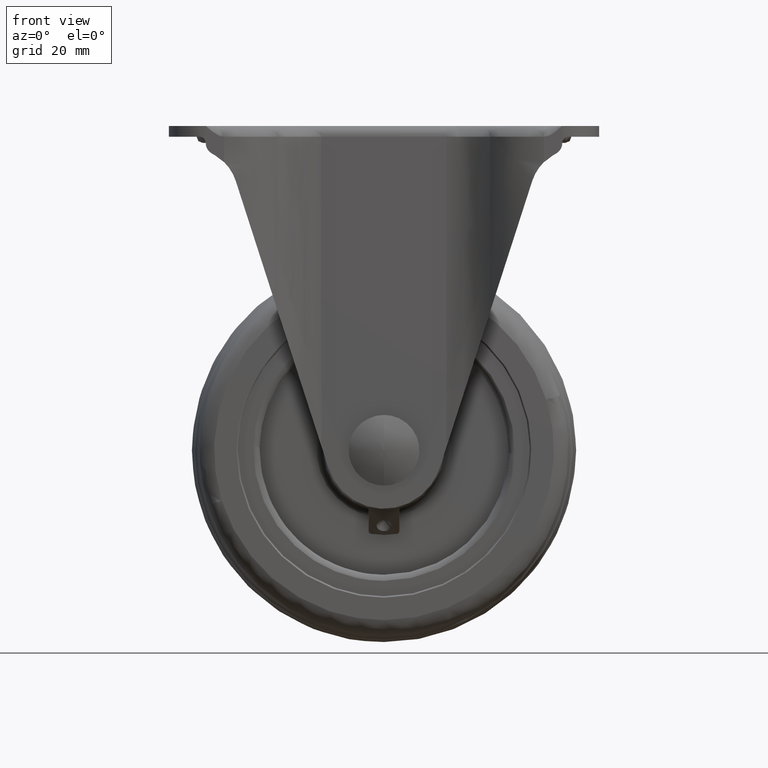
[diagram: clean part render]
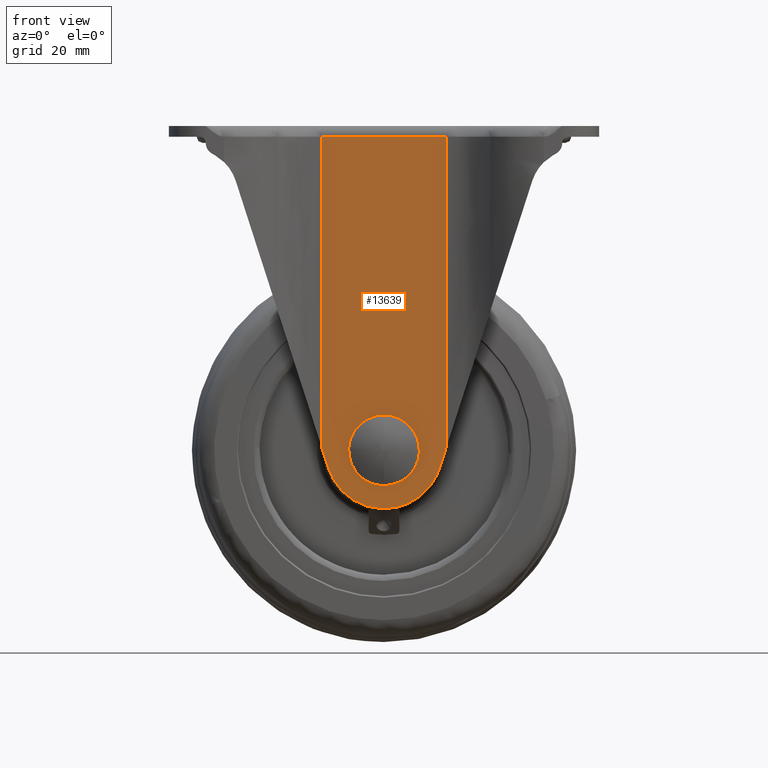
[diagram: same view with one face highlighted and labeled with its STEP entity id]
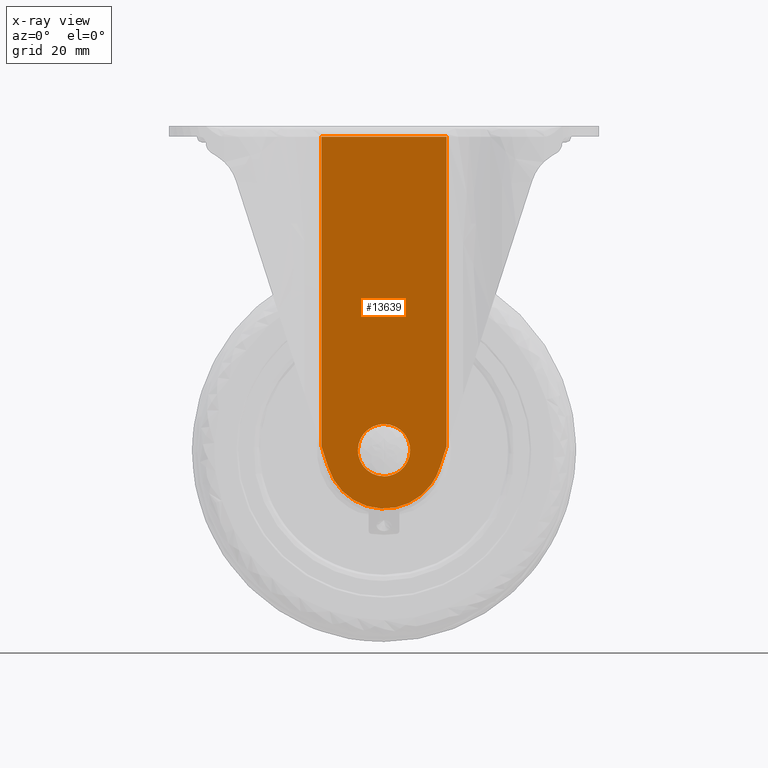
[diagram: x-ray of the same camera — body ghosted, the highlighted face saturated]
A machine part, front view. The second image highlights one B-rep face of the part: STEP entity #13639.
The next image is the same camera in x-ray: the body ghosted, the highlighted face saturated — about 0% of this face is hidden behind the body in this view.
In plain terms, the highlighted face is a freeform B-spline surface patch.
Its self-contained STEP definition (entity closure, byte-faithful):
#6710=CARTESIAN_POINT('',(0.074175491184803,-31.500000000000000,-8.499669346307332));
#6711=VERTEX_POINT('',#6710);
#6717=CARTESIAN_POINT('',(8.499993000000002,-31.500000000000000,0.0));
#6718=VERTEX_POINT('',#6717);
#6719=CARTESIAN_POINT('',(8.499993000000002,-31.500000000000000,0.0));
#6720=CARTESIAN_POINT('',(8.499993000000000,-31.500000000000004,-8.426138350349072));
#6721=CARTESIAN_POINT('',(0.074175491184802,-31.500000000000004,-8.499669346307334));
#6729=(BOUNDED_CURVE()B_SPLINE_CURVE(2,(#6719,#6720,#6721),.UNSPECIFIED.,.F.,.U.)B_SPLINE_CURVE_WITH_KNOTS((3,3),(0.500000000000000,0.748460105653939),.UNSPECIFIED.)CURVE()GEOMETRIC_REPRESENTATION_ITEM()RATIONAL_B_SPLINE_CURVE((1.0,0.708910879633149,0.996414028074777))REPRESENTATION_ITEM(''));
#6730=EDGE_CURVE('',#6718,#6711,#6729,.T.);
#6732=CARTESIAN_POINT('',(-0.074175491184803,-31.500000000000000,8.499669346307332));
#6733=VERTEX_POINT('',#6732);
#6734=CARTESIAN_POINT('',(-0.074175491184804,-31.499999999999993,8.499669346307334));
#6735=CARTESIAN_POINT('',(-0.037088451699710,-31.500000000000000,8.499993000000004));
#6736=CARTESIAN_POINT('',(0.0,-31.500000000000000,8.499993000000002));
#6737=CARTESIAN_POINT('',(8.499993000000002,-31.500000000000007,8.499993000000002));
#6738=CARTESIAN_POINT('',(8.499993000000002,-31.500000000000000,0.0));
#6746=(BOUNDED_CURVE()B_SPLINE_CURVE(2,(#6734,#6735,#6736,#6737,#6738),.UNSPECIFIED.,.F.,.U.)B_SPLINE_CURVE_WITH_KNOTS((3,2,3),(0.248460105653939,0.250000000000000,0.500000000000000),.UNSPECIFIED.)CURVE()GEOMETRIC_REPRESENTATION_ITEM()RATIONAL_B_SPLINE_CURVE((0.996414028074777,0.998195901553398,1.0,0.707106781186547,1.0))REPRESENTATION_ITEM(''));
#6747=EDGE_CURVE('',#6733,#6718,#6746,.T.);
#6823=CARTESIAN_POINT('',(-8.499993000000002,-31.500000000000000,0.0));
#6824=VERTEX_POINT('',#6823);
#6825=CARTESIAN_POINT('',(-8.499993000000002,-31.500000000000000,0.0));
#6826=CARTESIAN_POINT('',(-8.499993000000004,-31.500000000000004,8.426138350349071));
#6827=CARTESIAN_POINT('',(-0.074175491184804,-31.499999999999993,8.499669346307334));
#6835=(BOUNDED_CURVE()B_SPLINE_CURVE(2,(#6825,#6826,#6827),.UNSPECIFIED.,.F.,.U.)B_SPLINE_CURVE_WITH_KNOTS((3,3),(0.0,0.248460105653939),.UNSPECIFIED.)CURVE()GEOMETRIC_REPRESENTATION_ITEM()RATIONAL_B_SPLINE_CURVE((1.0,0.708910879633149,0.996414028074777))REPRESENTATION_ITEM(''));
#6836=EDGE_CURVE('',#6824,#6733,#6835,.T.);
#6838=CARTESIAN_POINT('',(0.074175491184802,-31.500000000000004,-8.499669346307334));
#6839=CARTESIAN_POINT('',(0.037088451699709,-31.500000000000000,-8.499993000000004));
#6840=CARTESIAN_POINT('',(0.0,-31.500000000000000,-8.499993000000002));
#6841=CARTESIAN_POINT('',(-8.499993000000002,-31.500000000000007,-8.499993000000002));
#6842=CARTESIAN_POINT('',(-8.499993000000002,-31.500000000000000,0.0));
#6850=(BOUNDED_CURVE()B_SPLINE_CURVE(2,(#6838,#6839,#6840,#6841,#6842),.UNSPECIFIED.,.F.,.U.)B_SPLINE_CURVE_WITH_KNOTS((3,2,3),(0.748460105653939,0.750000000000000,1.0),.UNSPECIFIED.)CURVE()GEOMETRIC_REPRESENTATION_ITEM()RATIONAL_B_SPLINE_CURVE((0.996414028074777,0.998195901553398,1.0,0.707106781186547,1.0))REPRESENTATION_ITEM(''));
#6851=EDGE_CURVE('',#6711,#6824,#6850,.T.);
#12146=CARTESIAN_POINT('',(-20.381176492475301,-31.500000000000000,102.0));
#12147=VERTEX_POINT('',#12146);
#12207=CARTESIAN_POINT('',(20.381172492475301,-31.500000000000000,102.0));
#12208=VERTEX_POINT('',#12207);
#12230=CARTESIAN_POINT('',(20.381172492475301,-31.500000000000000,102.0));
#12231=CARTESIAN_POINT('',(-20.381176492475301,-31.500000000000000,102.0));
#12232=QUASI_UNIFORM_CURVE('',1,(#12230,#12231),.UNSPECIFIED.,.F.,.U.);
#12233=EDGE_CURVE('',#12208,#12147,#12232,.T.);
#13138=CARTESIAN_POINT('',(-18.235149932094199,-31.500000000000000,-5.336600692767270));
#13139=VERTEX_POINT('',#13138);
#13140=CARTESIAN_POINT('',(18.235148162409399,-31.500000000000000,-5.336606739771750));
#13141=VERTEX_POINT('',#13140);
#13142=CARTESIAN_POINT('',(-18.235149932094199,-31.500000000000000,-5.336600692767270));
#13143=CARTESIAN_POINT('',(-17.967087515909270,-31.500000000000039,-6.252694110689194));
#13144=CARTESIAN_POINT('',(-17.225112594543749,-31.499999999999911,-8.223585253871157));
#13145=CARTESIAN_POINT('',(-15.749827790719801,-31.500000000000082,-10.765674029452400));
#13146=CARTESIAN_POINT('',(-13.941784169241370,-31.499999999999979,-12.994169864258041));
#13147=CARTESIAN_POINT('',(-11.987909808096729,-31.500000000000039,-14.827440552413821));
#13148=CARTESIAN_POINT('',(-9.264089500707369,-31.499999999999989,-16.722938043539319));
#13149=CARTESIAN_POINT('',(-5.808341457058003,-31.500000000000021,-18.253742704163511));
#13150=CARTESIAN_POINT('',(-2.167946989201751,-31.500000000000000,-18.975999867271799));
#13151=CARTESIAN_POINT('',(1.339950511867920,-31.499999999999989,-19.046508700421949));
#13152=CARTESIAN_POINT('',(4.311754708546127,-31.500000000000011,-18.595207403861298));
#13153=CARTESIAN_POINT('',(7.402549195292067,-31.499999999999911,-17.582871489125051));
#13154=CARTESIAN_POINT('',(10.361594024547820,-31.500000000000551,-16.071667321497461));
#13155=CARTESIAN_POINT('',(12.772583893723450,-31.500000000000021,-14.168693231463170));
#13156=CARTESIAN_POINT('',(14.730395186433601,-31.499999999999901,-12.074903724945340));
#13157=CARTESIAN_POINT('',(16.651613491766572,-31.500000000000249,-9.447832445938596));
#13158=CARTESIAN_POINT('',(17.753107708336788,-31.499999999999609,-6.985785644312550));
#13159=CARTESIAN_POINT('',(18.235148162409399,-31.500000000000000,-5.336606739771750));
#13160=B_SPLINE_CURVE_WITH_KNOTS('',3,(#13142,#13143,#13144,#13145,#13146,#13147,#13148,#13149,#13150,#13151,#13152,#13153,#13154,#13155,#13156,#13157,#13158,#13159),.UNSPECIFIED.,.F.,.U.,(4,1,1,1,1,1,1,1,1,1,1,1,1,1,1,4),(0.000000219925333,2.863537578913039,6.299867113002762,8.781617330841385,11.454304488330580,14.317896508408939,18.708706227572488,22.717784859718510,25.390298393162229,29.208402281330581,31.690218257414610,35.126525973395132,39.135562011522360,40.853726555679593,43.717328074401593,48.871694161207621),.UNSPECIFIED.);
#13161=EDGE_CURVE('',#13139,#13141,#13160,.T.);
#13182=CARTESIAN_POINT('',(-20.381176492475301,-31.500000000000000,1.315079682248088));
#13183=VERTEX_POINT('',#13182);
#13184=CARTESIAN_POINT('',(-18.235149932094199,-31.500000000000000,-5.336600692767270));
#13185=CARTESIAN_POINT('',(-20.381176492475301,-31.500000000000000,1.315079682248088));
#13186=QUASI_UNIFORM_CURVE('',1,(#13184,#13185),.UNSPECIFIED.,.F.,.U.);
#13187=EDGE_CURVE('',#13139,#13183,#13186,.T.);
#13350=CARTESIAN_POINT('',(20.381172492475251,-31.500000000000000,1.315066318886004));
#13351=VERTEX_POINT('',#13350);
#13365=CARTESIAN_POINT('',(20.381172492475251,-31.500000000000000,1.315066318886004));
#13366=CARTESIAN_POINT('',(18.235148162409399,-31.500000000000000,-5.336606739771750));
#13367=QUASI_UNIFORM_CURVE('',1,(#13365,#13366),.UNSPECIFIED.,.F.,.U.);
#13368=EDGE_CURVE('',#13351,#13141,#13367,.T.);
#13605=CARTESIAN_POINT('',(-20.381176492475301,-31.500000000000000,1.315079682248088));
#13606=CARTESIAN_POINT('',(-20.381176492475301,-31.500000000000000,102.0));
#13607=QUASI_UNIFORM_CURVE('',1,(#13605,#13606),.UNSPECIFIED.,.F.,.U.);
#13608=EDGE_CURVE('',#13183,#12147,#13607,.T.);
#13616=CARTESIAN_POINT('',(22.417251745268238,-31.500000000000000,-25.043949765478480));
#13617=CARTESIAN_POINT('',(-22.417256838599641,-31.500000000000000,-25.043949765478480));
#13618=CARTESIAN_POINT('',(22.417251745268238,-31.500000000000000,108.043953010951500));
#13619=CARTESIAN_POINT('',(-22.417256838599641,-31.500000000000000,108.043953010951500));
#13620=B_SPLINE_SURFACE_WITH_KNOTS('',1,1,((#13616,#13618),(#13617,#13619)),.UNSPECIFIED.,.F.,.F.,.U.,(2,2),(2,2),(0.0,44.834508583867887),(0.0,133.087902776429900),.UNSPECIFIED.);
#13621=CARTESIAN_POINT('',(20.381172492475251,-31.500000000000000,1.315066318886004));
#13622=CARTESIAN_POINT('',(20.381172492475301,-31.500000000000000,102.0));
#13623=QUASI_UNIFORM_CURVE('',1,(#13621,#13622),.UNSPECIFIED.,.F.,.U.);
#13624=EDGE_CURVE('',#13351,#12208,#13623,.T.);
#13625=ORIENTED_EDGE('',*,*,#13624,.T.);
#13626=ORIENTED_EDGE('',*,*,#12233,.T.);
#13627=ORIENTED_EDGE('',*,*,#13608,.F.);
#13628=ORIENTED_EDGE('',*,*,#13187,.F.);
#13629=ORIENTED_EDGE('',*,*,#13161,.T.);
#13630=ORIENTED_EDGE('',*,*,#13368,.F.);
#13631=EDGE_LOOP('',(#13625,#13626,#13627,#13628,#13629,#13630));
#13632=FACE_OUTER_BOUND('',#13631,.T.);
#13633=ORIENTED_EDGE('',*,*,#6836,.T.);
#13634=ORIENTED_EDGE('',*,*,#6747,.T.);
#13635=ORIENTED_EDGE('',*,*,#6730,.T.);
#13636=ORIENTED_EDGE('',*,*,#6851,.T.);
#13637=EDGE_LOOP('',(#13633,#13634,#13635,#13636));
#13638=FACE_BOUND('',#13637,.T.);
#13639=ADVANCED_FACE('',(#13632,#13638),#13620,.F.);